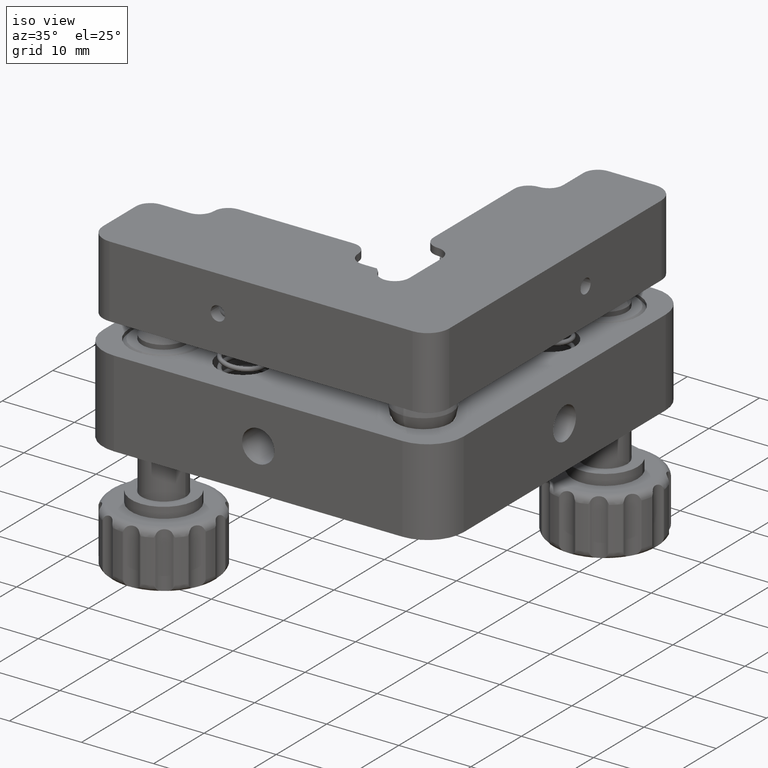
[diagram: clean part render]
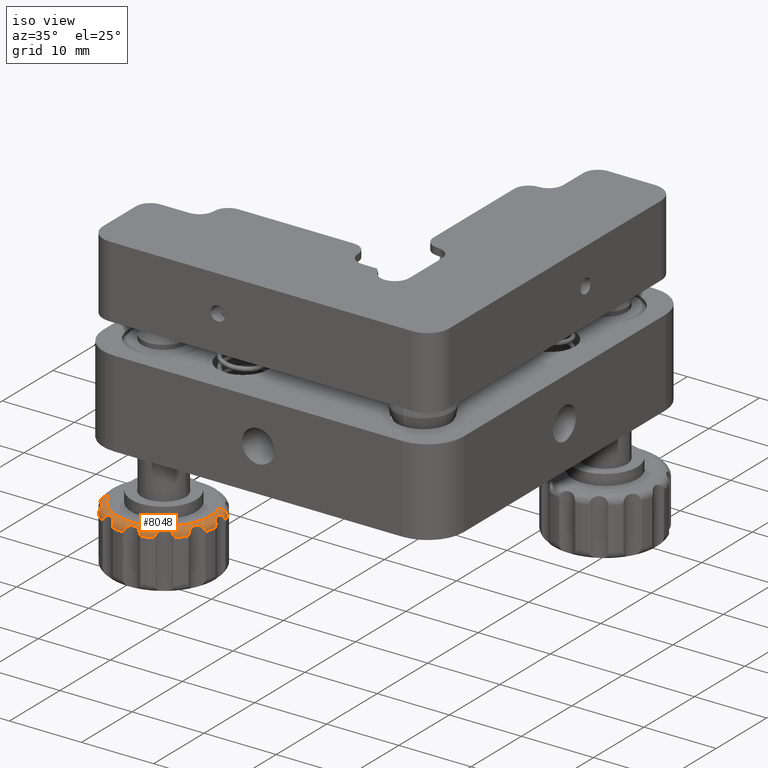
[diagram: same view with one face highlighted and labeled with its STEP entity id]
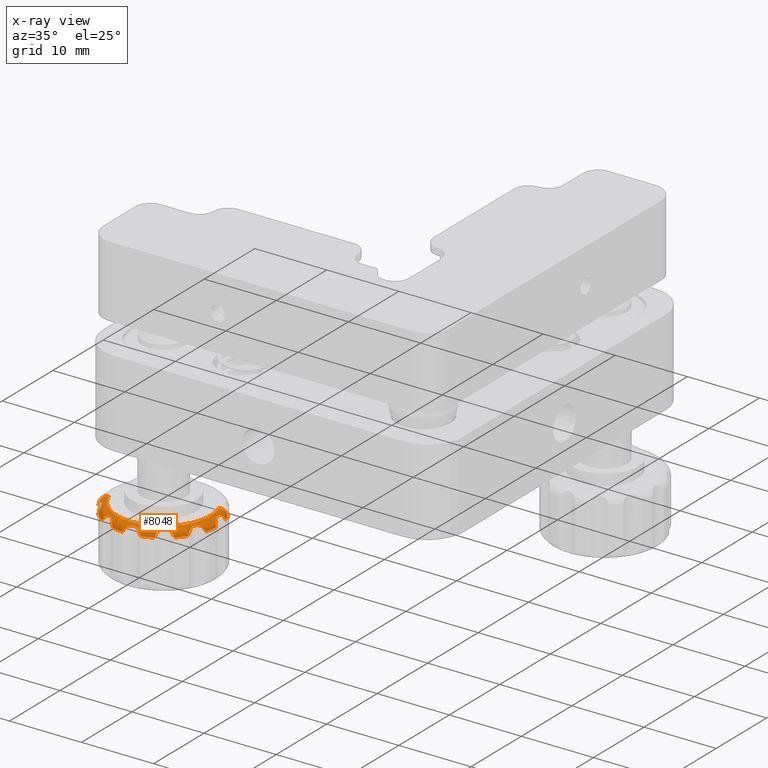
[diagram: x-ray of the same camera — body ghosted, the highlighted face saturated]
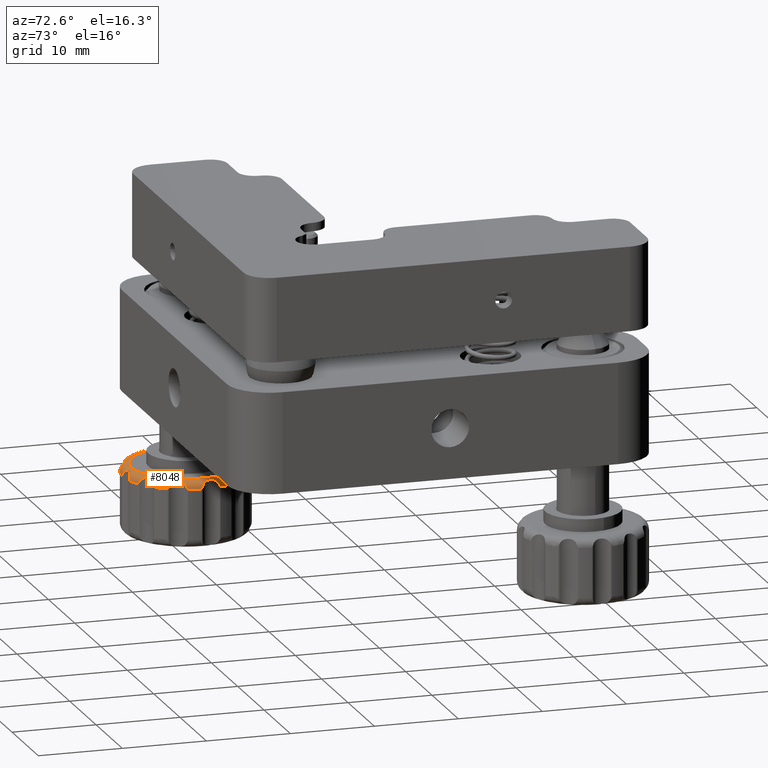
[diagram: same view with one face highlighted and labeled with its STEP entity id]
A machine part, iso view. The second image highlights one B-rep face of the part: STEP entity #8048.
The next image is the same camera in x-ray: the body ghosted, the highlighted face saturated — about 0% of this face is hidden behind the body in this view.
A second angle (auxiliary view) of the same face is appended — the face is thin or edge-on in the first view.
In plain terms, the highlighted toroidal blend (fillet) surface has major radius 6.5 mm and minor (blend) radius 1 mm.
Its self-contained STEP definition (entity closure, byte-faithful):
#90 = CARTESIAN_POINT ( 'NONE',  ( -10.50953074409655663, -18.38668106036778482, -24.35451595358413357 ) ) ;
#168 = CIRCLE ( 'NONE', #16454, 7.500000000000023093 ) ;
#176 = DIRECTION ( 'NONE',  ( -0.9363679154104278535, -0.3510201233404285359, 0.000000000000000000 ) ) ;
#181 = CARTESIAN_POINT ( 'NONE',  ( -10.76659190921171749, -19.98186967082072130, -24.50041507641944705 ) ) ;
#366 = VERTEX_POINT ( 'NONE', #9792 ) ;
#511 = DIRECTION ( 'NONE',  ( 0.3510201233404284804, -0.9363679154104279645, -6.267792948114826597E-17 ) ) ;
#592 = VERTEX_POINT ( 'NONE', #5124 ) ;
#606 = CARTESIAN_POINT ( 'NONE',  ( -11.70640386830477730, -22.08011024939188260, -24.35451595358458476 ) ) ;
#658 = EDGE_CURVE ( 'NONE', #5944, #8797, #10534, .T. ) ;
#683 = CARTESIAN_POINT ( 'NONE',  ( -11.23158460416036775, -20.36974971747346430, -23.75691461489521217 ) ) ;
#726 = DIRECTION ( 'NONE',  ( -2.193185720357693324E-18, 6.611512007216132848E-17, -1.000000000000000000 ) ) ;
#743 = VERTEX_POINT ( 'NONE', #12873 ) ;
#880 = ORIENTED_EDGE ( 'NONE', *, *, #10247, .T. ) ;
#907 = AXIS2_PLACEMENT_3D ( 'NONE', #16218, #5741, #9689 ) ;
#937 = CARTESIAN_POINT ( 'NONE',  ( -11.91360854983216733, -15.71836919828721157, -24.50041507641943284 ) ) ;
#963 = CARTESIAN_POINT ( 'NONE',  ( -10.68556392995791349, -18.14929337126891795, -23.91706082489123020 ) ) ;
#1092 = CIRCLE ( 'NONE', #5566, 1.000000000000000444 ) ;
#1112 = CARTESIAN_POINT ( 'NONE',  ( -23.51114383066794034, -22.41544846049870188, -23.67313584432698192 ) ) ;
#1164 = VERTEX_POINT ( 'NONE', #10023 ) ;
#1230 = CARTESIAN_POINT ( 'NONE',  ( -18.23745987487611231, -25.39832950567159742, -24.06897026124147132 ) ) ;
#1234 = EDGE_CURVE ( 'NONE', #1164, #5979, #14059, .T. ) ;
#1247 = CARTESIAN_POINT ( 'NONE',  ( -14.66268079846404504, -24.71656910535877927, -24.50041507641945415 ) ) ;
#1302 = EDGE_CURVE ( 'NONE', #13217, #4356, #16824, .T. ) ;
#1368 = ORIENTED_EDGE ( 'NONE', *, *, #9232, .T. ) ;
#1376 = CARTESIAN_POINT ( 'NONE',  ( -17.99999999999996803, -18.00000000000000711, -24.50041507641943284 ) ) ;
#1392 = CARTESIAN_POINT ( 'NONE',  ( -18.46808134361166154, -25.48537907228237742, -24.50041507641945060 ) ) ;
#1463 = EDGE_CURVE ( 'NONE', #13217, #5979, #168, .T. ) ;
#1574 = ORIENTED_EDGE ( 'NONE', *, *, #8942, .F. ) ;
#1679 = B_SPLINE_CURVE_WITH_KNOTS ( 'NONE', 3,
 ( #4448, #9702, #2872, #8206, #6976, #14996, #15181, #13668, #7142, #1818, #7058, #11028, #13582, #2954 ),
 .UNSPECIFIED., .F., .F.,
 ( 4, 2, 2, 2, 2, 2, 4 ),
 ( 0.0004549188434784732756, 0.0007454011220209012236, 0.001035883400563329063, 0.001616847957648181924, 0.002197812514733034784, 0.002488294793275466418, 0.002778777071817897619 ),
 .UNSPECIFIED. ) ;
#1768 = CARTESIAN_POINT ( 'NONE',  ( -17.99999999999996803, -18.00000000000000711, -24.50041507641943284 ) ) ;
#1789 = CARTESIAN_POINT ( 'NONE',  ( -17.99999999999996803, -18.00000000000000711, -24.50041507641943284 ) ) ;
#1818 = CARTESIAN_POINT ( 'NONE',  ( -21.54321004876257462, -24.23514437836508506, -23.75719214999141471 ) ) ;
#1957 = CARTESIAN_POINT ( 'NONE',  ( -16.44575640773592440, -25.14865923708376272, -23.91665278817946572 ) ) ;
#2081 = CARTESIAN_POINT ( 'NONE',  ( -16.34271114920686330, -25.21422624622471886, -24.06897026124345729 ) ) ;
#2118 = CARTESIAN_POINT ( 'NONE',  ( -18.23745987487611231, -25.39832950567159742, -24.06897026124147132 ) ) ;
#2201 = CARTESIAN_POINT ( 'NONE',  ( -10.63956858590502463, -18.19947819194455718, -23.98721942998190926 ) ) ;
#2307 = CARTESIAN_POINT ( 'NONE',  ( -10.76659190921171749, -19.98186967082072130, -24.50041507641944705 ) ) ;
#2321 = EDGE_CURVE ( 'NONE', #8862, #16758, #9141, .T. ) ;
#2469 = CARTESIAN_POINT ( 'NONE',  ( -17.99999999999996803, -18.00000000000000711, -24.50041507641943284 ) ) ;
#2593 = CARTESIAN_POINT ( 'NONE',  ( -23.43946414788973343, -22.65381593463871823, -23.74200182636072398 ) ) ;
#2601 = ORIENTED_EDGE ( 'NONE', *, *, #9312, .F. ) ;
#2664 = ORIENTED_EDGE ( 'NONE', *, *, #5075, .T. ) ;
#2674 = CARTESIAN_POINT ( 'NONE',  ( -24.61483928873885674, -21.46957447305529598, -24.20934846149218345 ) ) ;
#2682 = CARTESIAN_POINT ( 'NONE',  ( -10.82860154769079841, -17.95093772399014398, -23.75719214999140050 ) ) ;
#2685 = EDGE_CURVE ( 'NONE', #12342, #592, #4958, .T. ) ;
#2761 = ORIENTED_EDGE ( 'NONE', *, *, #658, .T. ) ;
#2872 = CARTESIAN_POINT ( 'NONE',  ( -20.22831518397205386, -24.96804229844485334, -23.91665278817948703 ) ) ;
#2954 = CARTESIAN_POINT ( 'NONE',  ( -21.90481103685797493, -24.28841136004151480, -24.06897026124146777 ) ) ;
#2964 = ORIENTED_EDGE ( 'NONE', *, *, #15089, .F. ) ;
#3006 = EDGE_CURVE ( 'NONE', #366, #3061, #12264, .T. ) ;
#3061 = VERTEX_POINT ( 'NONE', #7278 ) ;
#3267 = B_SPLINE_CURVE_WITH_KNOTS ( 'NONE', 3,
 ( #10103, #16626, #4572, #15475 ),
 .UNSPECIFIED., .F., .F.,
 ( 4, 4 ),
 ( 6.519145292256499442E-16, 0.0004984791478706618100 ),
 .UNSPECIFIED. ) ;
#3311 = CARTESIAN_POINT ( 'NONE',  ( -10.97146332946999792, -20.19534599317550772, -23.98780853955108938 ) ) ;
#3360 = DIRECTION ( 'NONE',  ( -2.193185720357693324E-18, 6.611512007216132848E-17, -1.000000000000000000 ) ) ;
#3386 = CARTESIAN_POINT ( 'NONE',  ( -20.06006501281923349, -25.21198347672514117, -24.35537818622575301 ) ) ;
#3397 = CARTESIAN_POINT ( 'NONE',  ( -11.75269350169999782, -21.26883922630026547, -23.65797987019827886 ) ) ;
#3415 = CARTESIAN_POINT ( 'NONE',  ( -11.01383753556210898, -17.51700032730303391, -23.63447837681785657 ) ) ;
#3484 = DIRECTION ( 'NONE',  ( -0.9363679154104278535, -0.3510201233404285359, 0.000000000000000000 ) ) ;
#3525 = DIRECTION ( 'NONE',  ( -0.9363679154104278535, -0.3510201233404285359, 0.000000000000000000 ) ) ;
#3548 = CARTESIAN_POINT ( 'NONE',  ( -19.98186967082074617, -25.23340809078827007, -24.50041507641944349 ) ) ;
#3678 = CARTESIAN_POINT ( 'NONE',  ( -10.81543569530276194, -16.38695706492138271, -23.98780853955109293 ) ) ;
#3815 = CARTESIAN_POINT ( 'NONE',  ( -23.46715257508125418, -22.53279785886936182, -23.69964874590745652 ) ) ;
#3862 = AXIS2_PLACEMENT_3D ( 'NONE', #15838, #4844, #3525 ) ;
#3868 = CIRCLE ( 'NONE', #17072, 7.500000000000023093 ) ;
#3940 = ORIENTED_EDGE ( 'NONE', *, *, #12612, .T. ) ;
#4051 = CARTESIAN_POINT ( 'NONE',  ( -14.22409348039470700, -23.95455106001308820, -23.65797987019827886 ) ) ;
#4147 = CARTESIAN_POINT ( 'NONE',  ( -13.01078168847827321, -23.41549373545137058, -23.98780853955108228 ) ) ;
#4179 = ORIENTED_EDGE ( 'NONE', *, *, #1234, .T. ) ;
#4231 = CARTESIAN_POINT ( 'NONE',  ( -13.59127884215414639, -23.50167538481999685, -23.65752537221049323 ) ) ;
#4356 = VERTEX_POINT ( 'NONE', #10527 ) ;
#4448 = CARTESIAN_POINT ( 'NONE',  ( -20.17185887691680435, -25.07634762327564459, -24.06897026124344308 ) ) ;
#4572 = CARTESIAN_POINT ( 'NONE',  ( -23.39006037291002116, -23.21572839610955441, -24.35537818622450246 ) ) ;
#4575 = B_SPLINE_CURVE_WITH_KNOTS ( 'NONE', 3,
 ( #11667, #3678, #8837, #11502, #7440, #15465, #15631, #3415, #7534, #2682, #12996, #963, #2201, #6297 ),
 .UNSPECIFIED., .F., .F.,
 ( 4, 2, 2, 2, 2, 2, 4 ),
 ( 0.0004549188434784871534, 0.0007454011220209131499, 0.001035883400563339038, 0.001616847957648191031, 0.002197812514733043024, 0.002488294793275472056, 0.002778777071817900655 ),
 .UNSPECIFIED. ) ;
#4613 = EDGE_CURVE ( 'NONE', #4962, #743, #15083, .T. ) ;
#4769 = CARTESIAN_POINT ( 'NONE',  ( -24.71656910535881835, -21.33731920153589812, -24.50041507641946126 ) ) ;
#4779 = CARTESIAN_POINT ( 'NONE',  ( -10.74475000202707164, -16.09964543652650448, -24.50041507641942573 ) ) ;
#4844 = DIRECTION ( 'NONE',  ( -2.193185720357693324E-18, 6.611512007216132848E-17, -1.000000000000000000 ) ) ;
#4892 = CARTESIAN_POINT ( 'NONE',  ( -16.09964543652652935, -25.25524999797291414, -24.50041507641945771 ) ) ;
#4958 = CIRCLE ( 'NONE', #11135, 7.500000000000023093 ) ;
#4962 = VERTEX_POINT ( 'NONE', #9428 ) ;
#5063 = CARTESIAN_POINT ( 'NONE',  ( -11.71158863995848876, -21.90481103685795006, -24.06897026124147843 ) ) ;
#5075 = EDGE_CURVE ( 'NONE', #5556, #16758, #7307, .T. ) ;
#5082 = VERTEX_POINT ( 'NONE', #10222 ) ;
#5118 = AXIS2_PLACEMENT_3D ( 'NONE', #1376, #8115, #9800 ) ;
#5124 = CARTESIAN_POINT ( 'NONE',  ( -19.98186967082074617, -25.23340809078827007, -24.50041507641944349 ) ) ;
#5169 = B_SPLINE_CURVE_WITH_KNOTS ( 'NONE', 3,
 ( #13975, #10011, #1957, #12747, #9841, #14139, #16803, #5974, #15393, #5894, #16889, #8598, #16542, #2118 ),
 .UNSPECIFIED., .F., .F.,
 ( 4, 2, 2, 2, 2, 2, 4 ),
 ( 0.0004549188434784932249, 0.0007454011220209288708, 0.001035883400563364625, 0.001616847957648245241, 0.002197812514733125857, 0.002488294793275559226, 0.002778777071817993029 ),
 .UNSPECIFIED. ) ;
#5449 = CARTESIAN_POINT ( 'NONE',  ( -14.41154731888895135, -24.26445346617079224, -23.80152507313179555 ) ) ;
#5542 = CARTESIAN_POINT ( 'NONE',  ( -14.37181159645338546, -24.18608210235522904, -23.75719214999138629 ) ) ;
#5556 = VERTEX_POINT ( 'NONE', #7384 ) ;
#5566 = AXIS2_PLACEMENT_3D ( 'NONE', #937, #15440, #16751 ) ;
#5584 = DIRECTION ( 'NONE',  ( -2.193185720357693324E-18, 6.611512007216132848E-17, -1.000000000000000000 ) ) ;
#5741 = DIRECTION ( 'NONE',  ( 2.193185720357693324E-18, -6.611512007216132848E-17, 1.000000000000000000 ) ) ;
#5787 = CIRCLE ( 'NONE', #10562, 7.500000000000023093 ) ;
#5790 = ORIENTED_EDGE ( 'NONE', *, *, #7523, .F. ) ;
#5827 = EDGE_CURVE ( 'NONE', #15626, #16907, #9184, .T. ) ;
#5835 = VERTEX_POINT ( 'NONE', #10542 ) ;
#5836 = VERTEX_POINT ( 'NONE', #13285 ) ;
#5894 = CARTESIAN_POINT ( 'NONE',  ( -17.95093772399016174, -25.17139845230916961, -23.75719214999139695 ) ) ;
#5912 = VERTEX_POINT ( 'NONE', #14508 ) ;
#5944 = VERTEX_POINT ( 'NONE', #13455 ) ;
#5945 = CARTESIAN_POINT ( 'NONE',  ( -10.92365237672435363, -20.17185887691678658, -24.06897026124345018 ) ) ;
#5974 = CARTESIAN_POINT ( 'NONE',  ( -17.51700032730304102, -24.98616246443786082, -23.63447837681785302 ) ) ;
#5979 = VERTEX_POINT ( 'NONE', #181 ) ;
#6025 = CARTESIAN_POINT ( 'NONE',  ( -11.43109778669355414, -20.56023006770671557, -23.65752537221049323 ) ) ;
#6297 = CARTESIAN_POINT ( 'NONE',  ( -10.60167049432838482, -18.23745987487606612, -24.06897026124147132 ) ) ;
#6322 = DIRECTION ( 'NONE',  ( -0.9363679154104278535, -0.3510201233404285359, 0.000000000000000000 ) ) ;
#6398 = ORIENTED_EDGE ( 'NONE', *, *, #9914, .T. ) ;
#6431 = ORIENTED_EDGE ( 'NONE', *, *, #11617, .F. ) ;
#6491 = CARTESIAN_POINT ( 'NONE',  ( -10.53659389747309127, -18.30268001038148640, -24.20934846149216924 ) ) ;
#6594 = ORIENTED_EDGE ( 'NONE', *, *, #5827, .F. ) ;
#6609 = ORIENTED_EDGE ( 'NONE', *, *, #2685, .F. ) ;
#6838 = CARTESIAN_POINT ( 'NONE',  ( -12.95763263069204285, -23.41905877248250079, -24.06897026124343597 ) ) ;
#6858 = CARTESIAN_POINT ( 'NONE',  ( -12.95763263069204285, -23.41905877248250079, -24.06897026124343597 ) ) ;
#6925 = CARTESIAN_POINT ( 'NONE',  ( -23.61737256662388162, -22.17959780921405155, -23.63468020554455151 ) ) ;
#6931 = CARTESIAN_POINT ( 'NONE',  ( -14.47207381711447205, -24.40913413664811316, -23.91706082489121954 ) ) ;
#6976 = CARTESIAN_POINT ( 'NONE',  ( -20.36974971747352825, -24.76841539583961804, -23.75691461489525480 ) ) ;
#6988 = ORIENTED_EDGE ( 'NONE', *, *, #3006, .F. ) ;
#7012 = CARTESIAN_POINT ( 'NONE',  ( -24.36232505702341911, -21.54322561689582471, -23.87026367076105160 ) ) ;
#7054 = DIRECTION ( 'NONE',  ( -0.9363679154104278535, -0.3510201233404285359, 0.000000000000000000 ) ) ;
#7058 = CARTESIAN_POINT ( 'NONE',  ( -21.63094950197385913, -24.23991791520593964, -23.80152507313182397 ) ) ;
#7077 = EDGE_CURVE ( 'NONE', #8862, #7480, #14477, .T. ) ;
#7142 = CARTESIAN_POINT ( 'NONE',  ( -21.26883922630026191, -24.24730649830002704, -23.65797987019832149 ) ) ;
#7153 = CARTESIAN_POINT ( 'NONE',  ( -24.08639145016777050, -20.28163080171279731, -24.50041507641943284 ) ) ;
#7193 = EDGE_CURVE ( 'NONE', #1164, #743, #15961, .T. ) ;
#7243 = B_SPLINE_CURVE_WITH_KNOTS ( 'NONE', 3,
 ( #15741, #10621, #9209, #9289 ),
 .UNSPECIFIED., .F., .F.,
 ( 4, 4 ),
 ( -6.324575239400678817E-06, 0.0004951179910539852931 ),
 .UNSPECIFIED. ) ;
#7251 = CARTESIAN_POINT ( 'NONE',  ( -14.53042552694466671, -24.61483928873883542, -24.20934846149216924 ) ) ;
#7278 = CARTESIAN_POINT ( 'NONE',  ( -24.52587123491762000, -21.49351846881360828, -24.06897026124147843 ) ) ;
#7307 = B_SPLINE_CURVE_WITH_KNOTS ( 'NONE', 3,
 ( #2081, #15341, #12707, #15436 ),
 .UNSPECIFIED., .F., .F.,
 ( 4, 4 ),
 ( 6.399695615700000497E-16, 0.0004984791478706391502 ),
 .UNSPECIFIED. ) ;
#7384 = CARTESIAN_POINT ( 'NONE',  ( -16.34271114920686330, -25.21422624622471886, -24.06897026124345729 ) ) ;
#7440 = CARTESIAN_POINT ( 'NONE',  ( -10.95350546510042555, -16.66805575802322537, -23.75691461489522993 ) ) ;
#7474 = CARTESIAN_POINT ( 'NONE',  ( -20.17185887691680435, -25.07634762327564459, -24.06897026124344308 ) ) ;
#7480 = VERTEX_POINT ( 'NONE', #15070 ) ;
#7516 = CARTESIAN_POINT ( 'NONE',  ( -17.99999999999996803, -18.00000000000000711, -24.50041507641943284 ) ) ;
#7523 = EDGE_CURVE ( 'NONE', #11361, #5082, #16059, .T. ) ;
#7534 = CARTESIAN_POINT ( 'NONE',  ( -10.95525425409443443, -17.70724456171308958, -23.65797987019830373 ) ) ;
#7644 = ORIENTED_EDGE ( 'NONE', *, *, #4613, .T. ) ;
#7770 = CARTESIAN_POINT ( 'NONE',  ( -11.72541850855302847, -21.85296888877248023, -23.98721942998188084 ) ) ;
#7847 = CARTESIAN_POINT ( 'NONE',  ( -23.41435178486647928, -22.97219363629416478, -23.96181086414040351 ) ) ;
#7857 = CARTESIAN_POINT ( 'NONE',  ( -11.74015923462081723, -21.78650988715656567, -23.91706082489120533 ) ) ;
#7892 = CARTESIAN_POINT ( 'NONE',  ( -10.60167049432838482, -18.23745987487606612, -24.06897026124147132 ) ) ;
#7902 = CARTESIAN_POINT ( 'NONE',  ( -10.74475000202707164, -16.09964543652650448, -24.50041507641942573 ) ) ;
#8000 = CARTESIAN_POINT ( 'NONE',  ( -21.90481103685797493, -24.28841136004151480, -24.06897026124146777 ) ) ;
#8048 = ADVANCED_FACE ( 'NONE', ( #15879 ), #10993, .T. ) ;
#8115 = DIRECTION ( 'NONE',  ( -2.193185720357693324E-18, 6.611512007216132848E-17, -1.000000000000000000 ) ) ;
#8152 = EDGE_CURVE ( 'NONE', #12652, #8797, #11844, .T. ) ;
#8206 = CARTESIAN_POINT ( 'NONE',  ( -20.31570450064467437, -24.83760574178263880, -23.80116600699830798 ) ) ;
#8225 = ORIENTED_EDGE ( 'NONE', *, *, #12702, .F. ) ;
#8329 = CARTESIAN_POINT ( 'NONE',  ( -24.45645203062914064, -21.51220127754814371, -23.95943720367419161 ) ) ;
#8418 = EDGE_CURVE ( 'NONE', #15666, #592, #15884, .T. ) ;
#8598 = CARTESIAN_POINT ( 'NONE',  ( -18.14929337126895348, -25.31443607004205987, -23.91706082489123020 ) ) ;
#8619 = ORIENTED_EDGE ( 'NONE', *, *, #8152, .F. ) ;
#8658 = CARTESIAN_POINT ( 'NONE',  ( -11.03195770155511823, -20.22831518397198636, -23.91665278817944085 ) ) ;
#8740 = CARTESIAN_POINT ( 'NONE',  ( -14.66268079846404504, -24.71656910535877927, -24.50041507641945415 ) ) ;
#8797 = VERTEX_POINT ( 'NONE', #7902 ) ;
#8837 = CARTESIAN_POINT ( 'NONE',  ( -10.85134076291622129, -16.44575640773591374, -23.91665278817944795 ) ) ;
#8862 = VERTEX_POINT ( 'NONE', #1247 ) ;
#8942 = EDGE_CURVE ( 'NONE', #13957, #7480, #16697, .T. ) ;
#8985 = CARTESIAN_POINT ( 'NONE',  ( -10.72420659107309859, -16.17807689618514644, -24.35537818622502826 ) ) ;
#9031 = VERTEX_POINT ( 'NONE', #13716 ) ;
#9058 = EDGE_CURVE ( 'NONE', #5556, #9325, #5169, .T. ) ;
#9141 = CIRCLE ( 'NONE', #11399, 7.500000000000023093 ) ;
#9184 = CIRCLE ( 'NONE', #3862, 7.500000000000023093 ) ;
#9209 = CARTESIAN_POINT ( 'NONE',  ( -18.30268001038154324, -25.46340610252688563, -24.20934846149216213 ) ) ;
#9232 = EDGE_CURVE ( 'NONE', #5835, #10411, #3267, .T. ) ;
#9250 = CARTESIAN_POINT ( 'NONE',  ( -23.41905877248249723, -23.04236736930793228, -24.06897026124342176 ) ) ;
#9289 = CARTESIAN_POINT ( 'NONE',  ( -18.23745987487611231, -25.39832950567159742, -24.06897026124147132 ) ) ;
#9291 = CARTESIAN_POINT ( 'NONE',  ( -12.72661967284780005, -23.33305352731476745, -24.50041507641942573 ) ) ;
#9312 = EDGE_CURVE ( 'NONE', #4962, #9031, #3868, .T. ) ;
#9325 = VERTEX_POINT ( 'NONE', #1230 ) ;
#9334 = CARTESIAN_POINT ( 'NONE',  ( -23.33305352731483140, -23.27338032715217864, -24.50041507641942218 ) ) ;
#9342 = EDGE_CURVE ( 'NONE', #12342, #9325, #7243, .T. ) ;
#9397 = ORIENTED_EDGE ( 'NONE', *, *, #7193, .F. ) ;
#9428 = CARTESIAN_POINT ( 'NONE',  ( -11.75151223825289648, -22.14805987074644378, -24.50041507641946126 ) ) ;
#9489 = CARTESIAN_POINT ( 'NONE',  ( -13.07965594688822542, -23.41379870618077774, -23.91665278817944440 ) ) ;
#9513 = CARTESIAN_POINT ( 'NONE',  ( -25.02275936557819946, -20.63265092505322684, -24.50041507641943284 ) ) ;
#9567 = DIRECTION ( 'NONE',  ( -2.193185720357693324E-18, 6.611512007216132848E-17, -1.000000000000000000 ) ) ;
#9619 = B_SPLINE_CURVE_WITH_KNOTS ( 'NONE', 3,
 ( #17018, #10319, #15956, #8000 ),
 .UNSPECIFIED., .F., .F.,
 ( 4, 4 ),
 ( -6.324575239432471352E-06, 0.0004951179910539581881 ),
 .UNSPECIFIED. ) ;
#9689 = DIRECTION ( 'NONE',  ( -0.9363679154104279645, -0.3510201233404285359, 0.000000000000000000 ) ) ;
#9702 = CARTESIAN_POINT ( 'NONE',  ( -20.19534599317557877, -25.02853667052996656, -23.98780853955111780 ) ) ;
#9792 = CARTESIAN_POINT ( 'NONE',  ( -23.51114383066794034, -22.41544846049870188, -23.67313584432698192 ) ) ;
#9800 = DIRECTION ( 'NONE',  ( -0.9363679154104278535, -0.3510201233404284804, -2.115410886131805643E-17 ) ) ;
#9802 = ORIENTED_EDGE ( 'NONE', *, *, #15273, .F. ) ;
#9841 = CARTESIAN_POINT ( 'NONE',  ( -16.66805575802323247, -25.04649453489956201, -23.75691461489522638 ) ) ;
#9914 = EDGE_CURVE ( 'NONE', #15626, #3061, #16887, .T. ) ;
#9979 = CARTESIAN_POINT ( 'NONE',  ( -11.71158863995848876, -21.90481103685795006, -24.06897026124147843 ) ) ;
#10011 = CARTESIAN_POINT ( 'NONE',  ( -16.38695706492139337, -25.18456430469722562, -23.98780853955110359 ) ) ;
#10023 = CARTESIAN_POINT ( 'NONE',  ( -10.92365237672435363, -20.17185887691678658, -24.06897026124345018 ) ) ;
#10103 = CARTESIAN_POINT ( 'NONE',  ( -23.41905877248249723, -23.04236736930793228, -24.06897026124342176 ) ) ;
#10222 = CARTESIAN_POINT ( 'NONE',  ( -11.91360854983216377, -15.71836919828720980, -23.50041507641943284 ) ) ;
#10228 = ORIENTED_EDGE ( 'NONE', *, *, #15239, .T. ) ;
#10247 = EDGE_CURVE ( 'NONE', #13957, #9031, #16474, .T. ) ;
#10319 = CARTESIAN_POINT ( 'NONE',  ( -22.08011024939234090, -24.29359613169491894, -24.35451595358427213 ) ) ;
#10411 = VERTEX_POINT ( 'NONE', #9334 ) ;
#10487 = CARTESIAN_POINT ( 'NONE',  ( -23.41313755772002736, -22.87403475504716255, -23.87250943113043178 ) ) ;
#10527 = CARTESIAN_POINT ( 'NONE',  ( -10.60167049432838482, -18.23745987487606612, -24.06897026124147132 ) ) ;
#10534 = B_SPLINE_CURVE_WITH_KNOTS ( 'NONE', 3,
 ( #14170, #11627, #8985, #4779 ),
 .UNSPECIFIED., .F., .F.,
 ( 4, 4 ),
 ( 6.426559334334572523E-16, 0.0004984791478706512933 ),
 .UNSPECIFIED. ) ;
#10542 = CARTESIAN_POINT ( 'NONE',  ( -23.41905877248249723, -23.04236736930793228, -24.06897026124342176 ) ) ;
#10562 = AXIS2_PLACEMENT_3D ( 'NONE', #7516, #15535, #3484 ) ;
#10579 = CARTESIAN_POINT ( 'NONE',  ( -24.52587123491762000, -21.49351846881360828, -24.06897026124147843 ) ) ;
#10621 = CARTESIAN_POINT ( 'NONE',  ( -18.38668106036787009, -25.49046925590342028, -24.35451595358410515 ) ) ;
#10663 = CARTESIAN_POINT ( 'NONE',  ( -24.68027719206326509, -21.41035900650963697, -24.35451595358337329 ) ) ;
#10981 = CARTESIAN_POINT ( 'NONE',  ( -23.76773050205377302, -21.96779005819578146, -23.63410946918335398 ) ) ;
#10993 = TOROIDAL_SURFACE ( 'NONE', #5118, 6.500000000000000000, 1.000000000000000000 ) ;
#11025 = CARTESIAN_POINT ( 'NONE',  ( -17.99999999999996803, -18.00000000000000711, -24.50041507641943284 ) ) ;
#11028 = CARTESIAN_POINT ( 'NONE',  ( -21.78650988715653369, -24.25984076537917744, -23.91706082489124086 ) ) ;
#11135 = AXIS2_PLACEMENT_3D ( 'NONE', #12760, #726, #6322 ) ;
#11361 = VERTEX_POINT ( 'NONE', #14756 ) ;
#11381 = CARTESIAN_POINT ( 'NONE',  ( -11.54801021446526654, -20.72163394900154643, -23.63430141390762174 ) ) ;
#11399 = AXIS2_PLACEMENT_3D ( 'NONE', #1789, #3360, #15146 ) ;
#11502 = CARTESIAN_POINT ( 'NONE',  ( -10.92060747623155770, -16.58665605432486601, -23.80116600699827956 ) ) ;
#11617 = EDGE_CURVE ( 'NONE', #5944, #4356, #4575, .T. ) ;
#11627 = CARTESIAN_POINT ( 'NONE',  ( -10.73446623948071910, -16.26617711818619227, -24.20935912257574429 ) ) ;
#11667 = CARTESIAN_POINT ( 'NONE',  ( -10.78577375377523495, -16.34271114920685974, -24.06897026124343597 ) ) ;
#11825 = CARTESIAN_POINT ( 'NONE',  ( -11.76485562163492027, -21.54321004876259593, -23.75719214999137563 ) ) ;
#11844 = CIRCLE ( 'NONE', #15504, 7.500000000000023093 ) ;
#12146 = B_SPLINE_CURVE_WITH_KNOTS ( 'NONE', 3,
 ( #9250, #7847, #10487, #2593, #3815, #1112 ),
 .UNSPECIFIED., .F., .F.,
 ( 4, 2, 4 ),
 ( 0.0004549188434785036332, 0.0008384482362595369921, 0.001221977629040570459 ),
 .UNSPECIFIED. ) ;
#12215 = CARTESIAN_POINT ( 'NONE',  ( -13.23631197687616989, -23.42426179610751191, -23.80116600699827600 ) ) ;
#12264 = B_SPLINE_CURVE_WITH_KNOTS ( 'NONE', 3,
 ( #15127, #15297, #6925, #10981, #16356, #13791, #12472, #7012, #8329, #12664 ),
 .UNSPECIFIED., .F., .F.,
 ( 4, 2, 2, 2, 4 ),
 ( 0.001221977629040570459, 0.001611177489734906369, 0.002000377350429242279, 0.002389577211123578189, 0.002778777071817914099 ),
 .UNSPECIFIED. ) ;
#12342 = VERTEX_POINT ( 'NONE', #1392 ) ;
#12472 = CARTESIAN_POINT ( 'NONE',  ( -24.15931879945780736, -21.64173901899667740, -23.73909454207878511 ) ) ;
#12612 = EDGE_CURVE ( 'NONE', #11361, #16907, #17039, .T. ) ;
#12652 = VERTEX_POINT ( 'NONE', #13154 ) ;
#12664 = CARTESIAN_POINT ( 'NONE',  ( -24.52587123491762000, -21.49351846881360828, -24.06897026124147843 ) ) ;
#12702 = EDGE_CURVE ( 'NONE', #5836, #10411, #5787, .T. ) ;
#12707 = CARTESIAN_POINT ( 'NONE',  ( -16.17807689618526368, -25.27579340892690851, -24.35537818622510997 ) ) ;
#12708 = ORIENTED_EDGE ( 'NONE', *, *, #15211, .F. ) ;
#12747 = CARTESIAN_POINT ( 'NONE',  ( -16.58665605432487311, -25.07939252376842987, -23.80116600699829377 ) ) ;
#12760 = CARTESIAN_POINT ( 'NONE',  ( -17.99999999999996803, -18.00000000000000711, -24.50041507641943284 ) ) ;
#12804 = CARTESIAN_POINT ( 'NONE',  ( -11.68784072164267052, -21.99383162947155412, -24.20934846149217989 ) ) ;
#12873 = CARTESIAN_POINT ( 'NONE',  ( -11.71158863995848876, -21.90481103685795006, -24.06897026124147843 ) ) ;
#12996 = CARTESIAN_POINT ( 'NONE',  ( -10.78059781691506913, -18.02453555096484905, -23.80152507313179555 ) ) ;
#13072 = ORIENTED_EDGE ( 'NONE', *, *, #9342, .T. ) ;
#13086 = DIRECTION ( 'NONE',  ( -0.9363679154104278535, -0.3510201233404285359, 0.000000000000000000 ) ) ;
#13154 = CARTESIAN_POINT ( 'NONE',  ( -10.97724063442176146, -15.36734907494678737, -24.50041507641943284 ) ) ;
#13217 = VERTEX_POINT ( 'NONE', #15753 ) ;
#13277 = CARTESIAN_POINT ( 'NONE',  ( -10.51462092771759771, -18.46808134361163312, -24.50041507641944705 ) ) ;
#13285 = CARTESIAN_POINT ( 'NONE',  ( -22.14805987074646154, -24.24848776174708931, -24.50041507641943639 ) ) ;
#13455 = CARTESIAN_POINT ( 'NONE',  ( -10.78577375377523495, -16.34271114920685974, -24.06897026124343597 ) ) ;
#13459 = CARTESIAN_POINT ( 'NONE',  ( -14.50648153118636685, -24.52587123491759868, -24.06897026124146421 ) ) ;
#13503 = ORIENTED_EDGE ( 'NONE', *, *, #1463, .F. ) ;
#13582 = CARTESIAN_POINT ( 'NONE',  ( -21.85296888877243049, -24.27458149144695199, -23.98721942998190571 ) ) ;
#13657 = AXIS2_PLACEMENT_3D ( 'NONE', #7153, #511, #13944 ) ;
#13668 = CARTESIAN_POINT ( 'NONE',  ( -21.07479124564381578, -24.29169400551699098, -23.63447837681787433 ) ) ;
#13716 = CARTESIAN_POINT ( 'NONE',  ( -12.72661967284780005, -23.33305352731476745, -24.50041507641942573 ) ) ;
#13791 = CARTESIAN_POINT ( 'NONE',  ( -24.05214735858449160, -21.70895609638905555, -23.69698096496361828 ) ) ;
#13795 = CARTESIAN_POINT ( 'NONE',  ( -14.08862878120591233, -23.80869433282000358, -23.63447837681783881 ) ) ;
#13944 = DIRECTION ( 'NONE',  ( 0.9363679154104280755, 0.3510201233404284804, 0.000000000000000000 ) ) ;
#13957 = VERTEX_POINT ( 'NONE', #6858 ) ;
#13975 = CARTESIAN_POINT ( 'NONE',  ( -16.34271114920686330, -25.21422624622471886, -24.06897026124345729 ) ) ;
#14020 = CARTESIAN_POINT ( 'NONE',  ( -20.17185887691680435, -25.07634762327564459, -24.06897026124344308 ) ) ;
#14032 = CARTESIAN_POINT ( 'NONE',  ( -11.16239425821733100, -20.31570450064460687, -23.80116600699827956 ) ) ;
#14059 = B_SPLINE_CURVE_WITH_KNOTS ( 'NONE', 3,
 ( #14327, #16980, #14146, #2307 ),
 .UNSPECIFIED., .F., .F.,
 ( 4, 4 ),
 ( 6.467797314256686535E-16, 0.0004984791478706599669 ),
 .UNSPECIFIED. ) ;
#14139 = CARTESIAN_POINT ( 'NONE',  ( -16.93277317151355987, -24.96895122555257274, -23.65752537221050744 ) ) ;
#14146 = CARTESIAN_POINT ( 'NONE',  ( -10.78801652327477534, -20.06006501281895993, -24.35537818622561446 ) ) ;
#14170 = CARTESIAN_POINT ( 'NONE',  ( -10.78577375377523495, -16.34271114920685974, -24.06897026124343597 ) ) ;
#14258 = ORIENTED_EDGE ( 'NONE', *, *, #2321, .F. ) ;
#14327 = CARTESIAN_POINT ( 'NONE',  ( -10.92365237672435363, -20.17185887691678658, -24.06897026124345018 ) ) ;
#14457 = CARTESIAN_POINT ( 'NONE',  ( -11.76008208479406925, -21.63094950197389110, -23.80152507313179200 ) ) ;
#14477 = B_SPLINE_CURVE_WITH_KNOTS ( 'NONE', 3,
 ( #8740, #16859, #7251, #15270 ),
 .UNSPECIFIED., .F., .F.,
 ( 4, 4 ),
 ( -6.324575239414536276E-06, 0.0004951179910539814984 ),
 .UNSPECIFIED. ) ;
#14508 = CARTESIAN_POINT ( 'NONE',  ( -21.90481103685797493, -24.28841136004151480, -24.06897026124146777 ) ) ;
#14521 = ORIENTED_EDGE ( 'NONE', *, *, #8418, .T. ) ;
#14756 = CARTESIAN_POINT ( 'NONE',  ( -24.08639145016776695, -20.28163080171279375, -23.50041507641943284 ) ) ;
#14875 = CARTESIAN_POINT ( 'NONE',  ( -13.77322991526997598, -23.58299903240486373, -23.63430141390762174 ) ) ;
#14996 = CARTESIAN_POINT ( 'NONE',  ( -20.56023006770677242, -24.56890221330644053, -23.65752537221052521 ) ) ;
#15070 = CARTESIAN_POINT ( 'NONE',  ( -14.50648153118636685, -24.52587123491759868, -24.06897026124146421 ) ) ;
#15083 = B_SPLINE_CURVE_WITH_KNOTS ( 'NONE', 3,
 ( #16686, #606, #12804, #9979 ),
 .UNSPECIFIED., .F., .F.,
 ( 4, 4 ),
 ( -6.324575239437185937E-06, 0.0004951179910539678375 ),
 .UNSPECIFIED. ) ;
#15089 = EDGE_CURVE ( 'NONE', #15666, #5912, #1679, .T. ) ;
#15127 = CARTESIAN_POINT ( 'NONE',  ( -23.51114383066794034, -22.41544846049870188, -23.67313584432698192 ) ) ;
#15146 = DIRECTION ( 'NONE',  ( -0.9363679154104278535, -0.3510201233404285359, 0.000000000000000000 ) ) ;
#15181 = CARTESIAN_POINT ( 'NONE',  ( -20.72163394900158906, -24.45198978553474589, -23.63430141390766082 ) ) ;
#15211 = EDGE_CURVE ( 'NONE', #5082, #12652, #1092, .T. ) ;
#15239 = EDGE_CURVE ( 'NONE', #5836, #5912, #9619, .T. ) ;
#15270 = CARTESIAN_POINT ( 'NONE',  ( -14.50648153118636685, -24.52587123491759868, -24.06897026124146421 ) ) ;
#15273 = EDGE_CURVE ( 'NONE', #5835, #366, #12146, .T. ) ;
#15297 = CARTESIAN_POINT ( 'NONE',  ( -23.55578549534441990, -22.29636405560538037, -23.64623095047542378 ) ) ;
#15341 = CARTESIAN_POINT ( 'NONE',  ( -16.26617711818619938, -25.26553376051924005, -24.20935912257576206 ) ) ;
#15393 = CARTESIAN_POINT ( 'NONE',  ( -17.70724456171311445, -25.04474574590553715, -23.65797987019828952 ) ) ;
#15436 = CARTESIAN_POINT ( 'NONE',  ( -16.09964543652652935, -25.25524999797291414, -24.50041507641945771 ) ) ;
#15440 = DIRECTION ( 'NONE',  ( -0.3510201233404285914, 0.9363679154104279645, 6.267792948114826597E-17 ) ) ;
#15448 = CARTESIAN_POINT ( 'NONE',  ( -11.70830599448302678, -21.07479124564378381, -23.63447837681783881 ) ) ;
#15465 = CARTESIAN_POINT ( 'NONE',  ( -11.03104877444741128, -16.93277317151355987, -23.65752537221049678 ) ) ;
#15475 = CARTESIAN_POINT ( 'NONE',  ( -23.33305352731483140, -23.27338032715217864, -24.50041507641942218 ) ) ;
#15504 = AXIS2_PLACEMENT_3D ( 'NONE', #11025, #5584, #7054 ) ;
#15535 = DIRECTION ( 'NONE',  ( -2.193185720357693324E-18, 6.611512007216132848E-17, -1.000000000000000000 ) ) ;
#15596 = CARTESIAN_POINT ( 'NONE',  ( -20.13123221894617387, -25.15904824957003427, -24.20935912257575495 ) ) ;
#15626 = VERTEX_POINT ( 'NONE', #4769 ) ;
#15631 = CARTESIAN_POINT ( 'NONE',  ( -11.05159596626841534, -17.13100924687014270, -23.63430141390763595 ) ) ;
#15666 = VERTEX_POINT ( 'NONE', #7474 ) ;
#15741 = CARTESIAN_POINT ( 'NONE',  ( -18.46808134361166154, -25.48537907228237742, -24.50041507641945060 ) ) ;
#15753 = CARTESIAN_POINT ( 'NONE',  ( -10.51462092771759771, -18.46808134361163312, -24.50041507641944705 ) ) ;
#15826 = CARTESIAN_POINT ( 'NONE',  ( -12.95763263069204285, -23.41905877248250079, -24.06897026124343597 ) ) ;
#15838 = CARTESIAN_POINT ( 'NONE',  ( -17.99999999999996803, -18.00000000000000711, -24.50041507641943284 ) ) ;
#15879 = FACE_OUTER_BOUND ( 'NONE', #16941, .T. ) ;
#15884 = B_SPLINE_CURVE_WITH_KNOTS ( 'NONE', 3,
 ( #14020, #15596, #3386, #3548 ),
 .UNSPECIFIED., .F., .F.,
 ( 4, 4 ),
 ( 6.582264162992956253E-16, 0.0004984791478706721100 ),
 .UNSPECIFIED. ) ;
#15956 = CARTESIAN_POINT ( 'NONE',  ( -21.99383162947158254, -24.31215927835732415, -24.20934846149216568 ) ) ;
#15961 = B_SPLINE_CURVE_WITH_KNOTS ( 'NONE', 3,
 ( #5945, #3311, #8658, #14032, #683, #6025, #11381, #15448, #3397, #11825, #14457, #7857, #7770, #5063 ),
 .UNSPECIFIED., .F., .F.,
 ( 4, 2, 2, 2, 2, 2, 4 ),
 ( 0.0004549188434784988628, 0.0007454011220209355928, 0.001035883400563372431, 0.001616847957648239169, 0.002197812514733105908, 0.002488294793275537542, 0.002778777071817969176 ),
 .UNSPECIFIED. ) ;
#16002 = CARTESIAN_POINT ( 'NONE',  ( -12.86569845842687698, -23.42522536775624431, -24.20935912257574074 ) ) ;
#16009 = ORIENTED_EDGE ( 'NONE', *, *, #1302, .T. ) ;
#16059 = CIRCLE ( 'NONE', #907, 6.500000000000022204 ) ;
#16181 = CARTESIAN_POINT ( 'NONE',  ( -14.49253747467749776, -24.47405968339153404, -23.98721942998189505 ) ) ;
#16218 = CARTESIAN_POINT ( 'NONE',  ( -17.99999999999996092, -18.00000000000000355, -23.50041507641943284 ) ) ;
#16280 = CARTESIAN_POINT ( 'NONE',  ( -13.32325518257390939, -23.43647115386283275, -23.75691461489521927 ) ) ;
#16305 = CARTESIAN_POINT ( 'NONE',  ( -24.71656910535881835, -21.33731920153589812, -24.50041507641946126 ) ) ;
#16356 = CARTESIAN_POINT ( 'NONE',  ( -23.85751750484914169, -21.87131564977491394, -23.64510128223195906 ) ) ;
#16454 = AXIS2_PLACEMENT_3D ( 'NONE', #1768, #9567, #176 ) ;
#16474 = B_SPLINE_CURVE_WITH_KNOTS ( 'NONE', 3,
 ( #15826, #16002, #17323, #9291 ),
 .UNSPECIFIED., .F., .F.,
 ( 4, 4 ),
 ( 6.510392014130631404E-16, 0.0004984791478706673395 ),
 .UNSPECIFIED. ) ;
#16542 = CARTESIAN_POINT ( 'NONE',  ( -18.19947819194458205, -25.36043141409494694, -23.98721942998190571 ) ) ;
#16626 = CARTESIAN_POINT ( 'NONE',  ( -23.42522536775628339, -23.13430154157310170, -24.20935912257572653 ) ) ;
#16686 = CARTESIAN_POINT ( 'NONE',  ( -11.75151223825289648, -22.14805987074644378, -24.50041507641946126 ) ) ;
#16697 = B_SPLINE_CURVE_WITH_KNOTS ( 'NONE', 3,
 ( #6838, #4147, #9489, #12215, #16280, #4231, #14875, #13795, #4051, #5542, #5449, #6931, #16181, #13459 ),
 .UNSPECIFIED., .F., .F.,
 ( 4, 2, 2, 2, 2, 2, 4 ),
 ( 0.0004549188434784758777, 0.0007454011220208978626, 0.001035883400563319956, 0.001616847957648157204, 0.002197812514732994018, 0.002488294793275409606, 0.002778777071817825194 ),
 .UNSPECIFIED. ) ;
#16751 = DIRECTION ( 'NONE',  ( -0.9363679154104280755, -0.3510201233404284804, 0.000000000000000000 ) ) ;
#16758 = VERTEX_POINT ( 'NONE', #4892 ) ;
#16803 = CARTESIAN_POINT ( 'NONE',  ( -17.13100924687015691, -24.94840403373156690, -23.63430141390763595 ) ) ;
#16824 = B_SPLINE_CURVE_WITH_KNOTS ( 'NONE', 3,
 ( #13277, #90, #6491, #7892 ),
 .UNSPECIFIED., .F., .F.,
 ( 4, 4 ),
 ( -6.324575239409969922E-06, 0.0004951179910539749932 ),
 .UNSPECIFIED. ) ;
#16859 = CARTESIAN_POINT ( 'NONE',  ( -14.58964099349099541, -24.68027719206353865, -24.35451595358295407 ) ) ;
#16887 = B_SPLINE_CURVE_WITH_KNOTS ( 'NONE', 3,
 ( #16305, #10663, #2674, #10579 ),
 .UNSPECIFIED., .F., .F.,
 ( 4, 4 ),
 ( -6.324575239432687345E-06, 0.0004951179910539872447 ),
 .UNSPECIFIED. ) ;
#16889 = CARTESIAN_POINT ( 'NONE',  ( -18.02453555096488103, -25.21940218308490245, -23.80152507313179910 ) ) ;
#16907 = VERTEX_POINT ( 'NONE', #9513 ) ;
#16941 = EDGE_LOOP ( 'NONE', ( #12708, #5790, #3940, #6594, #6398, #6988, #9802, #1368, #8225, #10228, #2964, #14521, #6609, #13072, #17020, #2664, #14258, #16996, #1574, #880, #2601, #7644, #9397, #4179, #13503, #16009, #6431, #2761, #8619 ) ) ;
#16980 = CARTESIAN_POINT ( 'NONE',  ( -10.84095175042994619, -20.13123221894612058, -24.20935912257575495 ) ) ;
#16996 = ORIENTED_EDGE ( 'NONE', *, *, #7077, .T. ) ;
#17018 = CARTESIAN_POINT ( 'NONE',  ( -22.14805987074646154, -24.24848776174708931, -24.50041507641943639 ) ) ;
#17020 = ORIENTED_EDGE ( 'NONE', *, *, #9058, .F. ) ;
#17039 = CIRCLE ( 'NONE', #13657, 1.000000000000000444 ) ;
#17066 = DIRECTION ( 'NONE',  ( -2.193185720357693324E-18, 6.611512007216132848E-17, -1.000000000000000000 ) ) ;
#17072 = AXIS2_PLACEMENT_3D ( 'NONE', #2469, #17066, #13086 ) ;
#17323 = CARTESIAN_POINT ( 'NONE',  ( -12.78427160389208161, -23.39006037291159501, -24.35537818622580986 ) ) ;